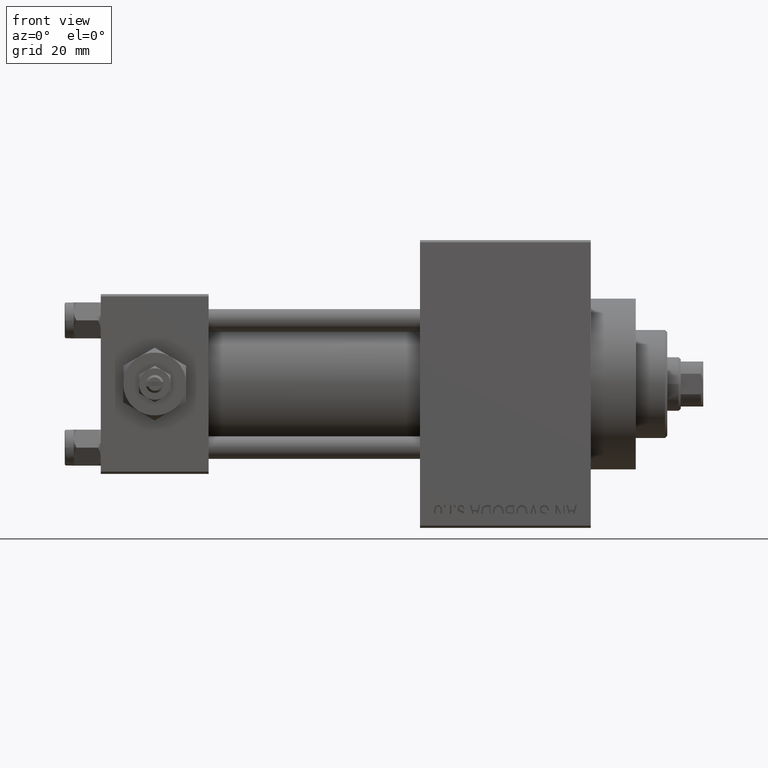
[diagram: clean part render]
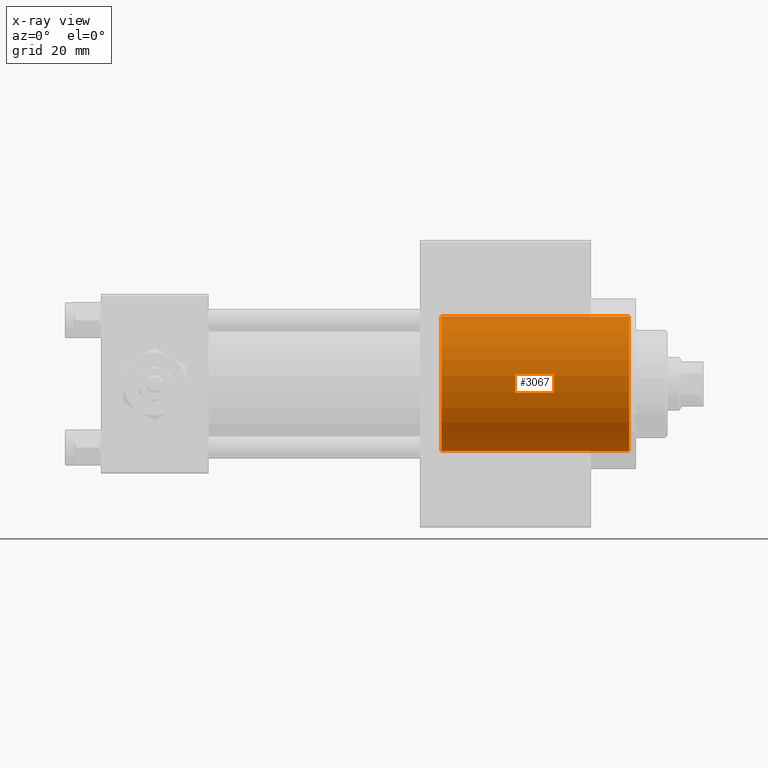
[diagram: x-ray — body ghosted, one internal face saturated and labeled with its STEP entity id]
A machine part, front view, then the same camera in x-ray: the body is ghosted and one INTERNAL B-rep face — a face not visible from any outside direction — is saturated and labeled: STEP entity #3067.
In plain terms, the highlighted cylindrical surface (partial cylindrical patch) has radius 15 mm, axis along (1, 0, 0).
Its self-contained STEP definition (entity closure, byte-faithful):
#3067 = ADVANCED_FACE ( 'NONE', ( #16324 ), #16793, .F. ) ;
#3407 = AXIS2_PLACEMENT_3D ( 'NONE', #8027, #11982, #15459 ) ;
#5642 = VERTEX_POINT ( 'NONE', #45918 ) ;
#5867 = DIRECTION ( 'NONE',  ( 1.000000000000000000, 0.000000000000000000, 0.000000000000000000 ) ) ;
#6512 = AXIS2_PLACEMENT_3D ( 'NONE', #42324, #42804, #19778 ) ;
#7064 = VECTOR ( 'NONE', #23013, 1000.000000000000000 ) ;
#8027 = CARTESIAN_POINT ( 'NONE',  ( 117.5000000000000000, 0.000000000000000000, 0.000000000000000000 ) ) ;
#10368 = EDGE_CURVE ( 'NONE', #31234, #48871, #22722, .T. ) ;
#11982 = DIRECTION ( 'NONE',  ( 1.000000000000000000, 0.000000000000000000, 0.000000000000000000 ) ) ;
#13283 = CARTESIAN_POINT ( 'NONE',  ( 75.73999999999999488, 0.000000000000000000, 0.000000000000000000 ) ) ;
#15459 = DIRECTION ( 'NONE',  ( 0.000000000000000000, 0.000000000000000000, -1.000000000000000000 ) ) ;
#15515 = AXIS2_PLACEMENT_3D ( 'NONE', #13283, #5867, #17728 ) ;
#16324 = FACE_OUTER_BOUND ( 'NONE', #31225, .T. ) ;
#16615 = EDGE_CURVE ( 'NONE', #48871, #5642, #44498, .T. ) ;
#16793 = CYLINDRICAL_SURFACE ( 'NONE', #6512, 15.00000000000000000 ) ;
#16935 = ORIENTED_EDGE ( 'NONE', *, *, #16615, .T. ) ;
#17728 = DIRECTION ( 'NONE',  ( 0.000000000000000000, 0.000000000000000000, -1.000000000000000000 ) ) ;
#18816 = CARTESIAN_POINT ( 'NONE',  ( 75.73999999999999488, 0.000000000000000000, -15.00000000000000000 ) ) ;
#19248 = CARTESIAN_POINT ( 'NONE',  ( 75.73999999999999488, 1.836970198721029589E-15, 15.00000000000000000 ) ) ;
#19778 = DIRECTION ( 'NONE',  ( 0.000000000000000000, 0.000000000000000000, -1.000000000000000000 ) ) ;
#22722 = LINE ( 'NONE', #19248, #48037 ) ;
#23013 = DIRECTION ( 'NONE',  ( 1.000000000000000000, -0.000000000000000000, -0.000000000000000000 ) ) ;
#23128 = VERTEX_POINT ( 'NONE', #48796 ) ;
#25173 = ORIENTED_EDGE ( 'NONE', *, *, #34365, .F. ) ;
#27993 = EDGE_CURVE ( 'NONE', #31234, #23128, #43971, .T. ) ;
#30751 = ORIENTED_EDGE ( 'NONE', *, *, #27993, .F. ) ;
#31149 = CARTESIAN_POINT ( 'NONE',  ( 117.5000000000000000, 1.836970198721029589E-15, 15.00000000000000000 ) ) ;
#31225 = EDGE_LOOP ( 'NONE', ( #30751, #42093, #16935, #25173 ) ) ;
#31234 = VERTEX_POINT ( 'NONE', #40592 ) ;
#34365 = EDGE_CURVE ( 'NONE', #23128, #5642, #45565, .T. ) ;
#37603 = DIRECTION ( 'NONE',  ( 1.000000000000000000, -0.000000000000000000, -0.000000000000000000 ) ) ;
#40592 = CARTESIAN_POINT ( 'NONE',  ( 75.73999999999999488, 1.836970198721029589E-15, 15.00000000000000000 ) ) ;
#42093 = ORIENTED_EDGE ( 'NONE', *, *, #10368, .T. ) ;
#42324 = CARTESIAN_POINT ( 'NONE',  ( 75.73999999999999488, 0.000000000000000000, 0.000000000000000000 ) ) ;
#42804 = DIRECTION ( 'NONE',  ( 1.000000000000000000, -0.000000000000000000, -0.000000000000000000 ) ) ;
#43971 = CIRCLE ( 'NONE', #15515, 15.00000000000000000 ) ;
#44498 = CIRCLE ( 'NONE', #3407, 15.00000000000000000 ) ;
#45565 = LINE ( 'NONE', #18816, #7064 ) ;
#45918 = CARTESIAN_POINT ( 'NONE',  ( 117.5000000000000000, 0.000000000000000000, -15.00000000000000000 ) ) ;
#48037 = VECTOR ( 'NONE', #37603, 1000.000000000000000 ) ;
#48796 = CARTESIAN_POINT ( 'NONE',  ( 75.73999999999999488, 0.000000000000000000, -15.00000000000000000 ) ) ;
#48871 = VERTEX_POINT ( 'NONE', #31149 ) ;